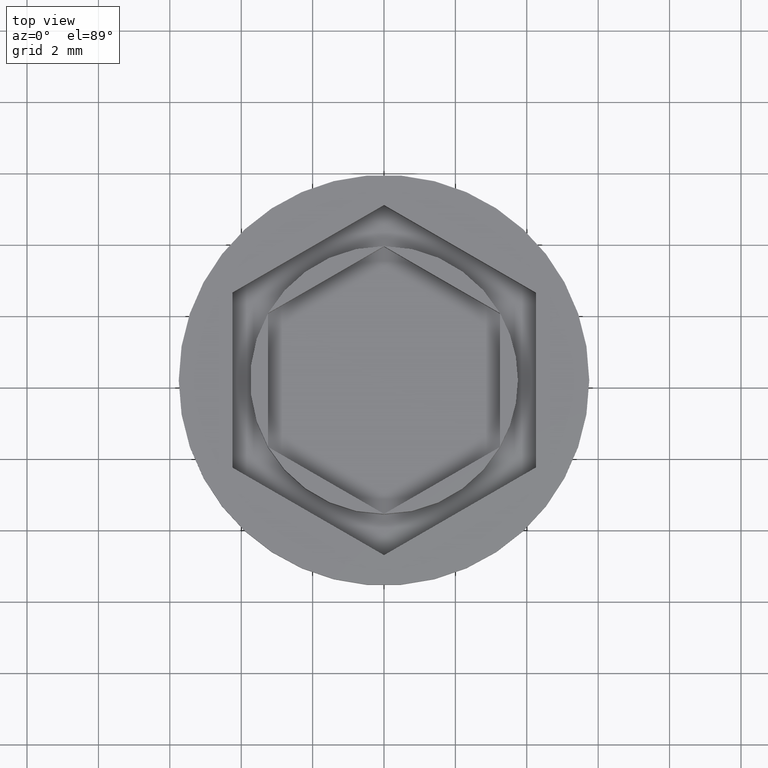
[diagram: clean part render]
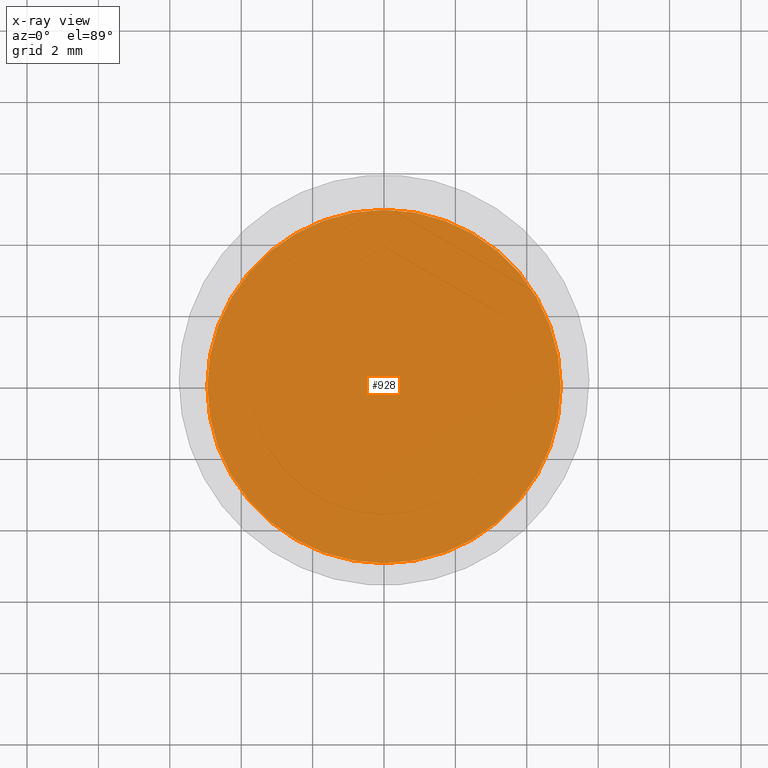
[diagram: x-ray — body ghosted, one internal face saturated and labeled with its STEP entity id]
A machine part, top view, then the same camera in x-ray: the body is ghosted and one INTERNAL B-rep face — a face not visible from any outside direction — is saturated and labeled: STEP entity #928.
In plain terms, the highlighted planar face has unit normal (0, 0, -1).
Its self-contained STEP definition (entity closure, byte-faithful):
#34 = CARTESIAN_POINT ( 'NONE',  ( 0.000000000000000000, 0.000000000000000000, -10.50000000000000000 ) ) ;
#40 = CARTESIAN_POINT ( 'NONE',  ( 0.000000000000000000, 0.000000000000000000, -10.50000000000000000 ) ) ;
#172 = FACE_OUTER_BOUND ( 'NONE', #1356, .T. ) ;
#275 = VERTEX_POINT ( 'NONE', #962 ) ;
#510 = DIRECTION ( 'NONE',  ( -1.000000000000000000, 0.000000000000000000, 0.000000000000000000 ) ) ;
#663 = DIRECTION ( 'NONE',  ( -0.000000000000000000, -0.000000000000000000, 1.000000000000000000 ) ) ;
#671 = AXIS2_PLACEMENT_3D ( 'NONE', #1427, #663, #510 ) ;
#779 = ORIENTED_EDGE ( 'NONE', *, *, #1555, .T. ) ;
#791 = PLANE ( 'NONE',  #1652 ) ;
#800 = CIRCLE ( 'NONE', #1027, 4.950000000000001066 ) ;
#834 = DIRECTION ( 'NONE',  ( -1.000000000000000000, 0.000000000000000000, 0.000000000000000000 ) ) ;
#893 = EDGE_CURVE ( 'NONE', #1406, #275, #1459, .T. ) ;
#928 = ADVANCED_FACE ( 'NONE', ( #172 ), #791, .F. ) ;
#962 = CARTESIAN_POINT ( 'NONE',  ( 4.950000000000001066, 6.245698675651502811E-16, -10.50000000000000000 ) ) ;
#993 = ORIENTED_EDGE ( 'NONE', *, *, #893, .T. ) ;
#994 = DIRECTION ( 'NONE',  ( -0.000000000000000000, -0.000000000000000000, 1.000000000000000000 ) ) ;
#1027 = AXIS2_PLACEMENT_3D ( 'NONE', #40, #994, #834 ) ;
#1250 = DIRECTION ( 'NONE',  ( -1.000000000000000000, 0.000000000000000000, -0.000000000000000000 ) ) ;
#1356 = EDGE_LOOP ( 'NONE', ( #993, #779 ) ) ;
#1406 = VERTEX_POINT ( 'NONE', #1879 ) ;
#1427 = CARTESIAN_POINT ( 'NONE',  ( 0.000000000000000000, 0.000000000000000000, -10.50000000000000000 ) ) ;
#1459 = CIRCLE ( 'NONE', #671, 4.950000000000001066 ) ;
#1555 = EDGE_CURVE ( 'NONE', #275, #1406, #800, .T. ) ;
#1652 = AXIS2_PLACEMENT_3D ( 'NONE', #34, #1870, #1250 ) ;
#1870 = DIRECTION ( 'NONE',  ( 0.000000000000000000, 0.000000000000000000, -1.000000000000000000 ) ) ;
#1879 = CARTESIAN_POINT ( 'NONE',  ( -4.950000000000001066, 0.000000000000000000, -10.50000000000000000 ) ) ;